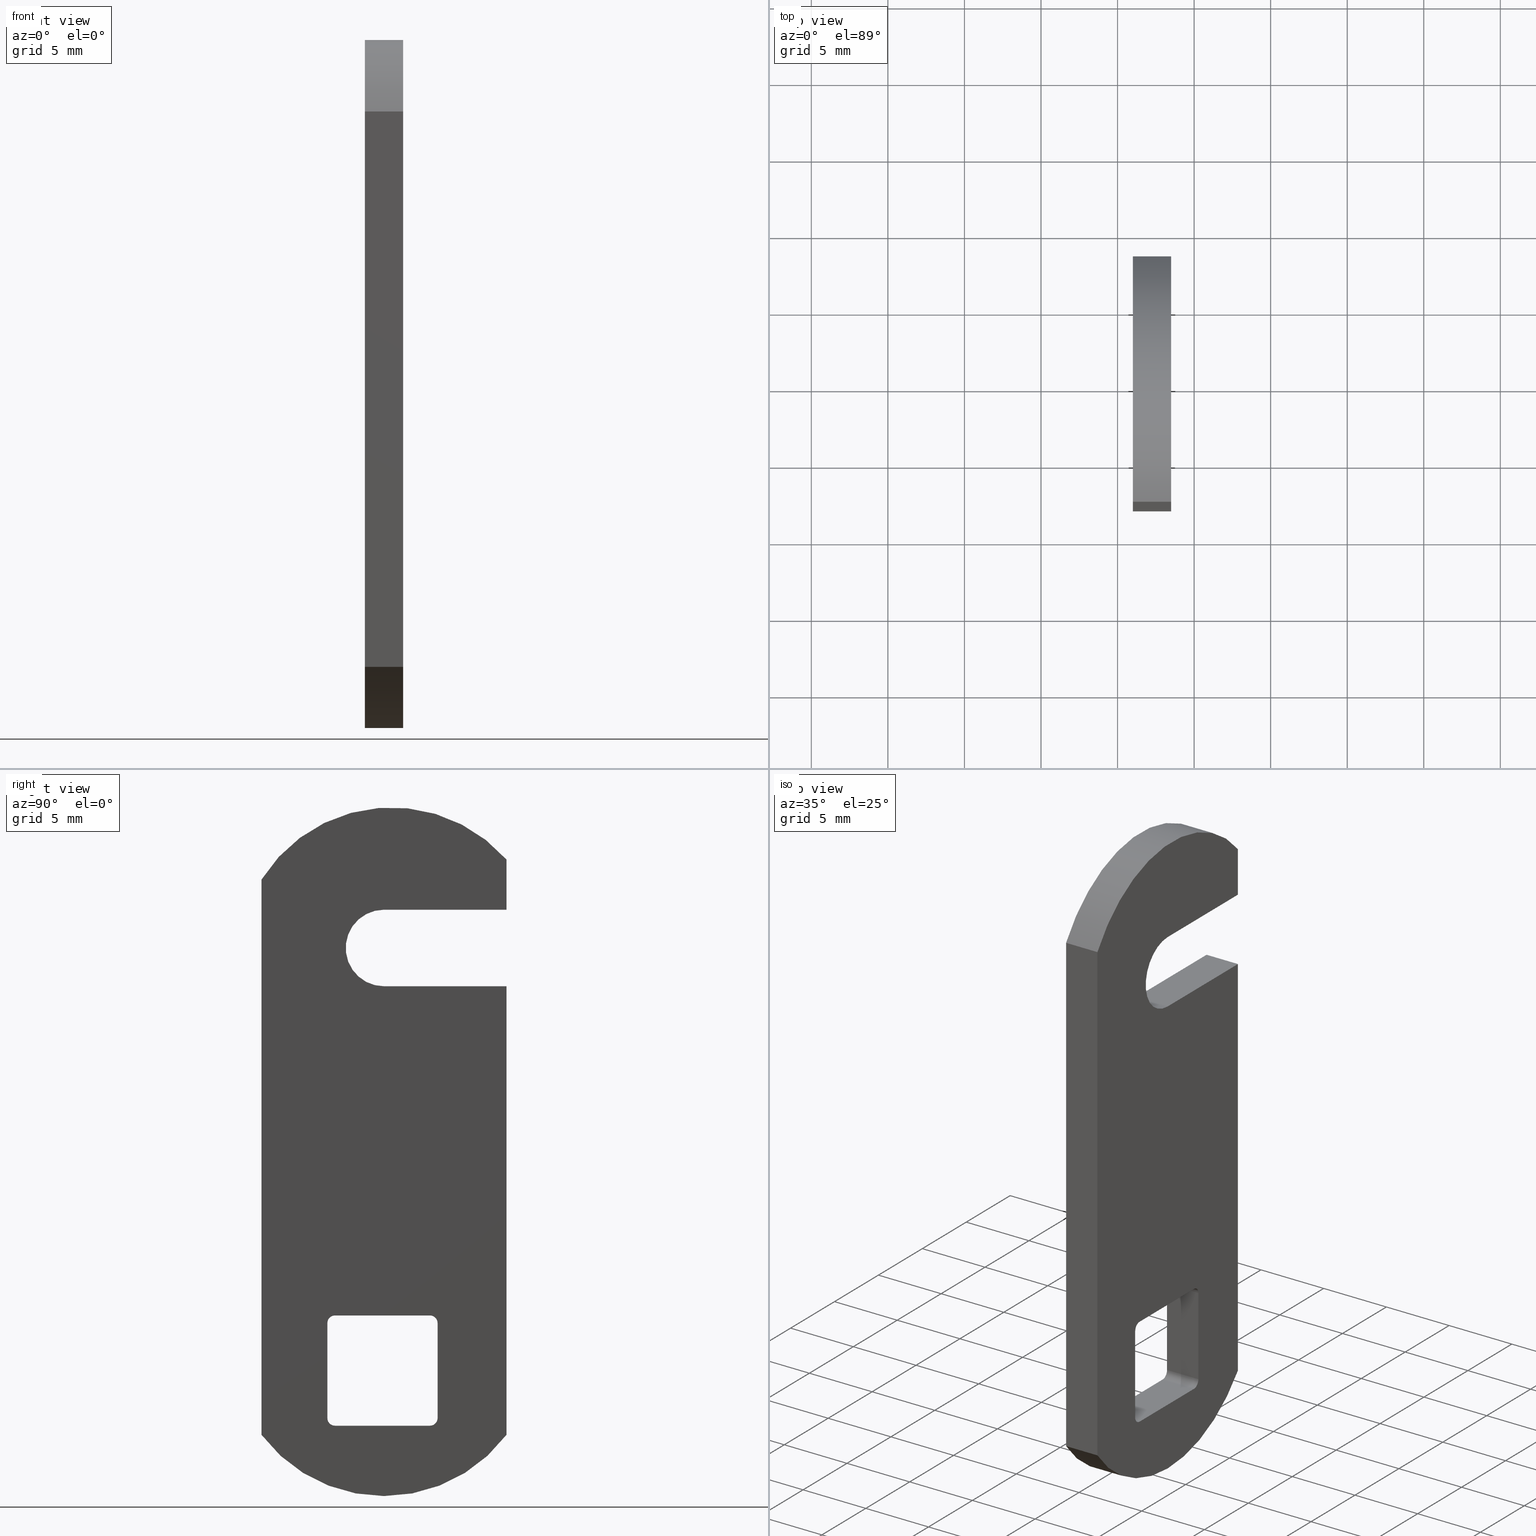
[diagram: canonical four-view strip — front | top / right | iso, engineering-drawing reading convention]
A machine part, canonical four-view strip (front | top / right | iso — engineering-drawing reading convention). The complete STEP part file that produces these views, byte-faithful:
ISO-10303-21;
HEADER;
/* Generated by software containing ST-Developer
 * from STEP Tools, Inc. (www.steptools.com) 
 */

FILE_DESCRIPTION(
/* description */ ('PIASTRINO ASOLATO X SERRAT.16X40X2,5'),
/* implementation_level */ '2;1');

FILE_NAME(
/* name */ 
'Q:\\Catalogo\\2_Accessori Dierre\\Per Download Web e catalogo cartace
o\\CATALOGO ACCESSORI PER RIPARI\\PAGINA 67\\DPSXX0000861.stp',
/* time_stamp */ '2018-11-08T16:53:43+01:00',
/* author */ ('fzagni'),
/* organization */ (''),
/* preprocessor_version */ 'ST-DEVELOPER v16.1',
/* originating_system */ 'Autodesk Inventor 2016',
/* authorisation */ '');

FILE_SCHEMA (('AUTOMOTIVE_DESIGN { 1 0 10303 214 3 1 1 }'));
ENDSEC;

DATA;
#10=MECHANICAL_DESIGN_GEOMETRIC_PRESENTATION_REPRESENTATION('',(#13),#585);
#11=SHAPE_REPRESENTATION_RELATIONSHIP('SRR','None',#594,#12);
#12=ADVANCED_BREP_SHAPE_REPRESENTATION('',(#14),#584);
#13=STYLED_ITEM('',(#603),#14);
#14=MANIFOLD_SOLID_BREP('None',#349);
#15=FACE_BOUND('',#62,.T.);
#16=FACE_BOUND('',#75,.T.);
#17=CIRCLE('',#354,2.5);
#18=CIRCLE('',#355,2.5);
#19=CIRCLE('',#359,10.);
#20=CIRCLE('',#360,10.);
#21=CIRCLE('',#361,0.5);
#22=CIRCLE('',#362,0.5);
#23=CIRCLE('',#363,0.5);
#24=CIRCLE('',#364,0.5);
#25=CIRCLE('',#367,10.);
#26=CIRCLE('',#369,10.);
#27=CIRCLE('',#372,0.5);
#28=CIRCLE('',#375,0.5);
#29=CIRCLE('',#378,0.5);
#30=CIRCLE('',#381,0.5);
#31=CYLINDRICAL_SURFACE('',#353,2.5);
#32=CYLINDRICAL_SURFACE('',#366,10.);
#33=CYLINDRICAL_SURFACE('',#368,10.);
#34=CYLINDRICAL_SURFACE('',#371,0.5);
#35=CYLINDRICAL_SURFACE('',#374,0.5);
#36=CYLINDRICAL_SURFACE('',#377,0.5);
#37=CYLINDRICAL_SURFACE('',#380,0.5);
#38=FACE_OUTER_BOUND('',#56,.T.);
#39=FACE_OUTER_BOUND('',#57,.T.);
#40=FACE_OUTER_BOUND('',#58,.T.);
#41=FACE_OUTER_BOUND('',#59,.T.);
#42=FACE_OUTER_BOUND('',#60,.T.);
#43=FACE_OUTER_BOUND('',#61,.T.);
#44=FACE_OUTER_BOUND('',#63,.T.);
#45=FACE_OUTER_BOUND('',#64,.T.);
#46=FACE_OUTER_BOUND('',#65,.T.);
#47=FACE_OUTER_BOUND('',#66,.T.);
#48=FACE_OUTER_BOUND('',#67,.T.);
#49=FACE_OUTER_BOUND('',#68,.T.);
#50=FACE_OUTER_BOUND('',#69,.T.);
#51=FACE_OUTER_BOUND('',#70,.T.);
#52=FACE_OUTER_BOUND('',#71,.T.);
#53=FACE_OUTER_BOUND('',#72,.T.);
#54=FACE_OUTER_BOUND('',#73,.T.);
#55=FACE_OUTER_BOUND('',#74,.T.);
#56=EDGE_LOOP('',(#224,#225,#226,#227));
#57=EDGE_LOOP('',(#228,#229,#230,#231));
#58=EDGE_LOOP('',(#232,#233,#234,#235));
#59=EDGE_LOOP('',(#236,#237,#238,#239));
#60=EDGE_LOOP('',(#240,#241,#242,#243));
#61=EDGE_LOOP('',(#244,#245,#246,#247,#248,#249,#250,#251));
#62=EDGE_LOOP('',(#252,#253,#254,#255,#256,#257,#258,#259));
#63=EDGE_LOOP('',(#260,#261,#262,#263));
#64=EDGE_LOOP('',(#264,#265,#266,#267));
#65=EDGE_LOOP('',(#268,#269,#270,#271));
#66=EDGE_LOOP('',(#272,#273,#274,#275));
#67=EDGE_LOOP('',(#276,#277,#278,#279));
#68=EDGE_LOOP('',(#280,#281,#282,#283));
#69=EDGE_LOOP('',(#284,#285,#286,#287));
#70=EDGE_LOOP('',(#288,#289,#290,#291));
#71=EDGE_LOOP('',(#292,#293,#294,#295));
#72=EDGE_LOOP('',(#296,#297,#298,#299));
#73=EDGE_LOOP('',(#300,#301,#302,#303));
#74=EDGE_LOOP('',(#304,#305,#306,#307,#308,#309,#310,#311));
#75=EDGE_LOOP('',(#312,#313,#314,#315,#316,#317,#318,#319));
#76=LINE('',#487,#110);
#77=LINE('',#489,#111);
#78=LINE('',#491,#112);
#79=LINE('',#492,#113);
#80=LINE('',#496,#114);
#81=LINE('',#498,#115);
#82=LINE('',#500,#116);
#83=LINE('',#501,#117);
#84=LINE('',#507,#118);
#85=LINE('',#509,#119);
#86=LINE('',#510,#120);
#87=LINE('',#513,#121);
#88=LINE('',#515,#122);
#89=LINE('',#516,#123);
#90=LINE('',#521,#124);
#91=LINE('',#525,#125);
#92=LINE('',#529,#126);
#93=LINE('',#533,#127);
#94=LINE('',#537,#128);
#95=LINE('',#542,#129);
#96=LINE('',#543,#130);
#97=LINE('',#544,#131);
#98=LINE('',#552,#132);
#99=LINE('',#553,#133);
#100=LINE('',#554,#134);
#101=LINE('',#558,#135);
#102=LINE('',#561,#136);
#103=LINE('',#562,#137);
#104=LINE('',#566,#138);
#105=LINE('',#569,#139);
#106=LINE('',#570,#140);
#107=LINE('',#574,#141);
#108=LINE('',#577,#142);
#109=LINE('',#578,#143);
#110=VECTOR('',#387,8.);
#111=VECTOR('',#388,2.5);
#112=VECTOR('',#389,8.);
#113=VECTOR('',#390,2.5);
#114=VECTOR('',#393,8.);
#115=VECTOR('',#394,2.5);
#116=VECTOR('',#395,8.);
#117=VECTOR('',#396,2.5);
#118=VECTOR('',#405,29.2958172199094);
#119=VECTOR('',#406,2.5);
#120=VECTOR('',#407,29.2958172199094);
#121=VECTOR('',#410,3.27849939249741);
#122=VECTOR('',#411,2.5);
#123=VECTOR('',#412,3.27849939249741);
#124=VECTOR('',#417,36.2674548355886);
#125=VECTOR('',#420,6.19999999999999);
#126=VECTOR('',#423,6.2);
#127=VECTOR('',#426,6.19999999999999);
#128=VECTOR('',#429,6.2);
#129=VECTOR('',#434,36.2674548355886);
#130=VECTOR('',#435,2.5);
#131=VECTOR('',#436,2.5);
#132=VECTOR('',#447,6.19999999999999);
#133=VECTOR('',#448,2.5);
#134=VECTOR('',#449,2.5);
#135=VECTOR('',#454,2.5);
#136=VECTOR('',#457,6.2);
#137=VECTOR('',#458,2.5);
#138=VECTOR('',#463,2.5);
#139=VECTOR('',#466,6.19999999999999);
#140=VECTOR('',#467,2.5);
#141=VECTOR('',#472,2.5);
#142=VECTOR('',#475,6.2);
#143=VECTOR('',#476,2.5);
#144=VERTEX_POINT('',#485);
#145=VERTEX_POINT('',#486);
#146=VERTEX_POINT('',#488);
#147=VERTEX_POINT('',#490);
#148=VERTEX_POINT('',#494);
#149=VERTEX_POINT('',#495);
#150=VERTEX_POINT('',#497);
#151=VERTEX_POINT('',#499);
#152=VERTEX_POINT('',#506);
#153=VERTEX_POINT('',#508);
#154=VERTEX_POINT('',#512);
#155=VERTEX_POINT('',#514);
#156=VERTEX_POINT('',#518);
#157=VERTEX_POINT('',#520);
#158=VERTEX_POINT('',#523);
#159=VERTEX_POINT('',#524);
#160=VERTEX_POINT('',#526);
#161=VERTEX_POINT('',#528);
#162=VERTEX_POINT('',#530);
#163=VERTEX_POINT('',#532);
#164=VERTEX_POINT('',#534);
#165=VERTEX_POINT('',#536);
#166=VERTEX_POINT('',#540);
#167=VERTEX_POINT('',#541);
#168=VERTEX_POINT('',#550);
#169=VERTEX_POINT('',#551);
#170=VERTEX_POINT('',#556);
#171=VERTEX_POINT('',#560);
#172=VERTEX_POINT('',#564);
#173=VERTEX_POINT('',#568);
#174=VERTEX_POINT('',#572);
#175=VERTEX_POINT('',#576);
#176=EDGE_CURVE('',#144,#145,#76,.T.);
#177=EDGE_CURVE('',#146,#144,#77,.T.);
#178=EDGE_CURVE('',#147,#146,#78,.T.);
#179=EDGE_CURVE('',#145,#147,#79,.T.);
#180=EDGE_CURVE('',#148,#149,#80,.T.);
#181=EDGE_CURVE('',#150,#148,#81,.T.);
#182=EDGE_CURVE('',#151,#150,#82,.T.);
#183=EDGE_CURVE('',#151,#149,#83,.T.);
#184=EDGE_CURVE('',#149,#144,#17,.T.);
#185=EDGE_CURVE('',#146,#151,#18,.T.);
#186=EDGE_CURVE('',#147,#152,#84,.T.);
#187=EDGE_CURVE('',#152,#153,#85,.T.);
#188=EDGE_CURVE('',#145,#153,#86,.T.);
#189=EDGE_CURVE('',#154,#148,#87,.T.);
#190=EDGE_CURVE('',#155,#154,#88,.T.);
#191=EDGE_CURVE('',#155,#150,#89,.T.);
#192=EDGE_CURVE('',#153,#156,#19,.T.);
#193=EDGE_CURVE('',#156,#157,#90,.T.);
#194=EDGE_CURVE('',#157,#154,#20,.T.);
#195=EDGE_CURVE('',#158,#159,#91,.T.);
#196=EDGE_CURVE('',#159,#160,#21,.T.);
#197=EDGE_CURVE('',#160,#161,#92,.T.);
#198=EDGE_CURVE('',#161,#162,#22,.T.);
#199=EDGE_CURVE('',#162,#163,#93,.T.);
#200=EDGE_CURVE('',#163,#164,#23,.T.);
#201=EDGE_CURVE('',#164,#165,#94,.T.);
#202=EDGE_CURVE('',#165,#158,#24,.T.);
#203=EDGE_CURVE('',#166,#167,#95,.T.);
#204=EDGE_CURVE('',#167,#157,#96,.F.);
#205=EDGE_CURVE('',#166,#156,#97,.T.);
#206=EDGE_CURVE('',#167,#155,#25,.T.);
#207=EDGE_CURVE('',#152,#166,#26,.T.);
#208=EDGE_CURVE('',#168,#169,#98,.T.);
#209=EDGE_CURVE('',#169,#159,#99,.T.);
#210=EDGE_CURVE('',#168,#158,#100,.T.);
#211=EDGE_CURVE('',#169,#170,#27,.T.);
#212=EDGE_CURVE('',#170,#160,#101,.T.);
#213=EDGE_CURVE('',#170,#171,#102,.T.);
#214=EDGE_CURVE('',#171,#161,#103,.T.);
#215=EDGE_CURVE('',#171,#172,#28,.T.);
#216=EDGE_CURVE('',#172,#162,#104,.T.);
#217=EDGE_CURVE('',#172,#173,#105,.T.);
#218=EDGE_CURVE('',#173,#163,#106,.T.);
#219=EDGE_CURVE('',#173,#174,#29,.T.);
#220=EDGE_CURVE('',#174,#164,#107,.T.);
#221=EDGE_CURVE('',#174,#175,#108,.T.);
#222=EDGE_CURVE('',#175,#165,#109,.T.);
#223=EDGE_CURVE('',#175,#168,#30,.T.);
#224=ORIENTED_EDGE('',*,*,#176,.F.);
#225=ORIENTED_EDGE('',*,*,#177,.F.);
#226=ORIENTED_EDGE('',*,*,#178,.F.);
#227=ORIENTED_EDGE('',*,*,#179,.F.);
#228=ORIENTED_EDGE('',*,*,#180,.F.);
#229=ORIENTED_EDGE('',*,*,#181,.F.);
#230=ORIENTED_EDGE('',*,*,#182,.F.);
#231=ORIENTED_EDGE('',*,*,#183,.T.);
#232=ORIENTED_EDGE('',*,*,#184,.F.);
#233=ORIENTED_EDGE('',*,*,#183,.F.);
#234=ORIENTED_EDGE('',*,*,#185,.F.);
#235=ORIENTED_EDGE('',*,*,#177,.T.);
#236=ORIENTED_EDGE('',*,*,#179,.T.);
#237=ORIENTED_EDGE('',*,*,#186,.T.);
#238=ORIENTED_EDGE('',*,*,#187,.T.);
#239=ORIENTED_EDGE('',*,*,#188,.F.);
#240=ORIENTED_EDGE('',*,*,#181,.T.);
#241=ORIENTED_EDGE('',*,*,#189,.F.);
#242=ORIENTED_EDGE('',*,*,#190,.F.);
#243=ORIENTED_EDGE('',*,*,#191,.T.);
#244=ORIENTED_EDGE('',*,*,#180,.T.);
#245=ORIENTED_EDGE('',*,*,#184,.T.);
#246=ORIENTED_EDGE('',*,*,#176,.T.);
#247=ORIENTED_EDGE('',*,*,#188,.T.);
#248=ORIENTED_EDGE('',*,*,#192,.T.);
#249=ORIENTED_EDGE('',*,*,#193,.T.);
#250=ORIENTED_EDGE('',*,*,#194,.T.);
#251=ORIENTED_EDGE('',*,*,#189,.T.);
#252=ORIENTED_EDGE('',*,*,#195,.T.);
#253=ORIENTED_EDGE('',*,*,#196,.T.);
#254=ORIENTED_EDGE('',*,*,#197,.T.);
#255=ORIENTED_EDGE('',*,*,#198,.T.);
#256=ORIENTED_EDGE('',*,*,#199,.T.);
#257=ORIENTED_EDGE('',*,*,#200,.T.);
#258=ORIENTED_EDGE('',*,*,#201,.T.);
#259=ORIENTED_EDGE('',*,*,#202,.T.);
#260=ORIENTED_EDGE('',*,*,#203,.T.);
#261=ORIENTED_EDGE('',*,*,#204,.T.);
#262=ORIENTED_EDGE('',*,*,#193,.F.);
#263=ORIENTED_EDGE('',*,*,#205,.F.);
#264=ORIENTED_EDGE('',*,*,#206,.T.);
#265=ORIENTED_EDGE('',*,*,#190,.T.);
#266=ORIENTED_EDGE('',*,*,#194,.F.);
#267=ORIENTED_EDGE('',*,*,#204,.F.);
#268=ORIENTED_EDGE('',*,*,#207,.T.);
#269=ORIENTED_EDGE('',*,*,#205,.T.);
#270=ORIENTED_EDGE('',*,*,#192,.F.);
#271=ORIENTED_EDGE('',*,*,#187,.F.);
#272=ORIENTED_EDGE('',*,*,#208,.T.);
#273=ORIENTED_EDGE('',*,*,#209,.T.);
#274=ORIENTED_EDGE('',*,*,#195,.F.);
#275=ORIENTED_EDGE('',*,*,#210,.F.);
#276=ORIENTED_EDGE('',*,*,#211,.T.);
#277=ORIENTED_EDGE('',*,*,#212,.T.);
#278=ORIENTED_EDGE('',*,*,#196,.F.);
#279=ORIENTED_EDGE('',*,*,#209,.F.);
#280=ORIENTED_EDGE('',*,*,#213,.T.);
#281=ORIENTED_EDGE('',*,*,#214,.T.);
#282=ORIENTED_EDGE('',*,*,#197,.F.);
#283=ORIENTED_EDGE('',*,*,#212,.F.);
#284=ORIENTED_EDGE('',*,*,#215,.T.);
#285=ORIENTED_EDGE('',*,*,#216,.T.);
#286=ORIENTED_EDGE('',*,*,#198,.F.);
#287=ORIENTED_EDGE('',*,*,#214,.F.);
#288=ORIENTED_EDGE('',*,*,#217,.T.);
#289=ORIENTED_EDGE('',*,*,#218,.T.);
#290=ORIENTED_EDGE('',*,*,#199,.F.);
#291=ORIENTED_EDGE('',*,*,#216,.F.);
#292=ORIENTED_EDGE('',*,*,#219,.T.);
#293=ORIENTED_EDGE('',*,*,#220,.T.);
#294=ORIENTED_EDGE('',*,*,#200,.F.);
#295=ORIENTED_EDGE('',*,*,#218,.F.);
#296=ORIENTED_EDGE('',*,*,#221,.T.);
#297=ORIENTED_EDGE('',*,*,#222,.T.);
#298=ORIENTED_EDGE('',*,*,#201,.F.);
#299=ORIENTED_EDGE('',*,*,#220,.F.);
#300=ORIENTED_EDGE('',*,*,#223,.T.);
#301=ORIENTED_EDGE('',*,*,#210,.T.);
#302=ORIENTED_EDGE('',*,*,#202,.F.);
#303=ORIENTED_EDGE('',*,*,#222,.F.);
#304=ORIENTED_EDGE('',*,*,#182,.T.);
#305=ORIENTED_EDGE('',*,*,#191,.F.);
#306=ORIENTED_EDGE('',*,*,#206,.F.);
#307=ORIENTED_EDGE('',*,*,#203,.F.);
#308=ORIENTED_EDGE('',*,*,#207,.F.);
#309=ORIENTED_EDGE('',*,*,#186,.F.);
#310=ORIENTED_EDGE('',*,*,#178,.T.);
#311=ORIENTED_EDGE('',*,*,#185,.T.);
#312=ORIENTED_EDGE('',*,*,#223,.F.);
#313=ORIENTED_EDGE('',*,*,#221,.F.);
#314=ORIENTED_EDGE('',*,*,#219,.F.);
#315=ORIENTED_EDGE('',*,*,#217,.F.);
#316=ORIENTED_EDGE('',*,*,#215,.F.);
#317=ORIENTED_EDGE('',*,*,#213,.F.);
#318=ORIENTED_EDGE('',*,*,#211,.F.);
#319=ORIENTED_EDGE('',*,*,#208,.F.);
#320=PLANE('',#351);
#321=PLANE('',#352);
#322=PLANE('',#356);
#323=PLANE('',#357);
#324=PLANE('',#358);
#325=PLANE('',#365);
#326=PLANE('',#370);
#327=PLANE('',#373);
#328=PLANE('',#376);
#329=PLANE('',#379);
#330=PLANE('',#382);
#331=ADVANCED_FACE('',(#38),#320,.F.);
#332=ADVANCED_FACE('',(#39),#321,.F.);
#333=ADVANCED_FACE('',(#40),#31,.F.);
#334=ADVANCED_FACE('',(#41),#322,.T.);
#335=ADVANCED_FACE('',(#42),#323,.T.);
#336=ADVANCED_FACE('',(#43,#15),#324,.T.);
#337=ADVANCED_FACE('',(#44),#325,.T.);
#338=ADVANCED_FACE('',(#45),#32,.T.);
#339=ADVANCED_FACE('',(#46),#33,.T.);
#340=ADVANCED_FACE('',(#47),#326,.T.);
#341=ADVANCED_FACE('',(#48),#34,.F.);
#342=ADVANCED_FACE('',(#49),#327,.T.);
#343=ADVANCED_FACE('',(#50),#35,.F.);
#344=ADVANCED_FACE('',(#51),#328,.T.);
#345=ADVANCED_FACE('',(#52),#36,.F.);
#346=ADVANCED_FACE('',(#53),#329,.T.);
#347=ADVANCED_FACE('',(#54),#37,.F.);
#348=ADVANCED_FACE('',(#55,#16),#330,.F.);
#349=CLOSED_SHELL('',(#331,#332,#333,#334,#335,#336,#337,#338,#339,#340,
#341,#342,#343,#344,#345,#346,#347,#348));
#350=AXIS2_PLACEMENT_3D('placement',#483,#383,#384);
#351=AXIS2_PLACEMENT_3D('',#484,#385,#386);
#352=AXIS2_PLACEMENT_3D('',#493,#391,#392);
#353=AXIS2_PLACEMENT_3D('',#502,#397,#398);
#354=AXIS2_PLACEMENT_3D('',#503,#399,#400);
#355=AXIS2_PLACEMENT_3D('',#504,#401,#402);
#356=AXIS2_PLACEMENT_3D('',#505,#403,#404);
#357=AXIS2_PLACEMENT_3D('',#511,#408,#409);
#358=AXIS2_PLACEMENT_3D('',#517,#413,#414);
#359=AXIS2_PLACEMENT_3D('',#519,#415,#416);
#360=AXIS2_PLACEMENT_3D('',#522,#418,#419);
#361=AXIS2_PLACEMENT_3D('',#527,#421,#422);
#362=AXIS2_PLACEMENT_3D('',#531,#424,#425);
#363=AXIS2_PLACEMENT_3D('',#535,#427,#428);
#364=AXIS2_PLACEMENT_3D('',#538,#430,#431);
#365=AXIS2_PLACEMENT_3D('',#539,#432,#433);
#366=AXIS2_PLACEMENT_3D('',#545,#437,#438);
#367=AXIS2_PLACEMENT_3D('',#546,#439,#440);
#368=AXIS2_PLACEMENT_3D('',#547,#441,#442);
#369=AXIS2_PLACEMENT_3D('',#548,#443,#444);
#370=AXIS2_PLACEMENT_3D('',#549,#445,#446);
#371=AXIS2_PLACEMENT_3D('',#555,#450,#451);
#372=AXIS2_PLACEMENT_3D('',#557,#452,#453);
#373=AXIS2_PLACEMENT_3D('',#559,#455,#456);
#374=AXIS2_PLACEMENT_3D('',#563,#459,#460);
#375=AXIS2_PLACEMENT_3D('',#565,#461,#462);
#376=AXIS2_PLACEMENT_3D('',#567,#464,#465);
#377=AXIS2_PLACEMENT_3D('',#571,#468,#469);
#378=AXIS2_PLACEMENT_3D('',#573,#470,#471);
#379=AXIS2_PLACEMENT_3D('',#575,#473,#474);
#380=AXIS2_PLACEMENT_3D('',#579,#477,#478);
#381=AXIS2_PLACEMENT_3D('',#580,#479,#480);
#382=AXIS2_PLACEMENT_3D('',#581,#481,#482);
#383=DIRECTION('axis',(0.,0.,1.));
#384=DIRECTION('refdir',(1.,0.,0.));
#385=DIRECTION('center_axis',(0.,8.32667268468864E-16,-1.));
#386=DIRECTION('ref_axis',(0.,-1.,-7.105427357601E-16));
#387=DIRECTION('',(0.,1.,8.32667268468864E-16));
#388=DIRECTION('',(-1.,0.,0.));
#389=DIRECTION('',(0.,-1.,-8.32667268468864E-16));
#390=DIRECTION('',(1.,0.,0.));
#391=DIRECTION('center_axis',(0.,-8.32667268468864E-16,1.));
#392=DIRECTION('ref_axis',(0.,1.,7.105427357601E-16));
#393=DIRECTION('',(0.,-1.,-8.32667268468864E-16));
#394=DIRECTION('',(-1.,0.,0.));
#395=DIRECTION('',(0.,1.,8.32667268468864E-16));
#396=DIRECTION('',(-1.,0.,0.));
#397=DIRECTION('center_axis',(-1.,0.,0.));
#398=DIRECTION('ref_axis',(0.,-1.0547118733939E-15,1.));
#399=DIRECTION('center_axis',(1.,0.,0.));
#400=DIRECTION('ref_axis',(0.,-1.0547118733939E-15,1.));
#401=DIRECTION('center_axis',(-1.,0.,0.));
#402=DIRECTION('ref_axis',(0.,-1.0547118733939E-15,1.));
#403=DIRECTION('center_axis',(0.,1.,0.));
#404=DIRECTION('ref_axis',(0.,0.,1.));
#405=DIRECTION('',(0.,0.,-1.));
#406=DIRECTION('',(-1.,0.,0.));
#407=DIRECTION('',(0.,0.,-1.));
#408=DIRECTION('center_axis',(0.,1.,0.));
#409=DIRECTION('ref_axis',(0.,0.,1.));
#410=DIRECTION('',(0.,0.,-1.));
#411=DIRECTION('',(-1.,0.,0.));
#412=DIRECTION('',(0.,0.,-1.));
#413=DIRECTION('center_axis',(-1.,0.,0.));
#414=DIRECTION('ref_axis',(0.,0.,1.));
#415=DIRECTION('center_axis',(-1.,0.,0.));
#416=DIRECTION('ref_axis',(0.,0.,1.));
#417=DIRECTION('',(0.,0.,1.));
#418=DIRECTION('center_axis',(-1.,0.,0.));
#419=DIRECTION('ref_axis',(0.,0.,1.));
#420=DIRECTION('',(0.,1.,0.));
#421=DIRECTION('center_axis',(1.,0.,0.));
#422=DIRECTION('ref_axis',(0.,0.,1.));
#423=DIRECTION('',(0.,0.,1.));
#424=DIRECTION('center_axis',(1.,0.,0.));
#425=DIRECTION('ref_axis',(0.,0.,1.));
#426=DIRECTION('',(0.,-1.,0.));
#427=DIRECTION('center_axis',(1.,0.,0.));
#428=DIRECTION('ref_axis',(0.,0.,1.));
#429=DIRECTION('',(0.,0.,-1.));
#430=DIRECTION('center_axis',(1.,0.,0.));
#431=DIRECTION('ref_axis',(0.,0.,1.));
#432=DIRECTION('center_axis',(0.,-1.,0.));
#433=DIRECTION('ref_axis',(0.,0.,-1.));
#434=DIRECTION('',(0.,0.,1.));
#435=DIRECTION('',(1.,0.,0.));
#436=DIRECTION('',(-1.,0.,0.));
#437=DIRECTION('center_axis',(-1.,0.,0.));
#438=DIRECTION('ref_axis',(0.,-0.800000000000001,0.599999999999999));
#439=DIRECTION('center_axis',(-1.,0.,0.));
#440=DIRECTION('ref_axis',(0.,0.,1.));
#441=DIRECTION('center_axis',(-1.,0.,0.));
#442=DIRECTION('ref_axis',(0.,0.,1.));
#443=DIRECTION('center_axis',(-1.,0.,0.));
#444=DIRECTION('ref_axis',(0.,0.,1.));
#445=DIRECTION('center_axis',(0.,0.,1.));
#446=DIRECTION('ref_axis',(1.,0.,0.));
#447=DIRECTION('',(0.,1.,0.));
#448=DIRECTION('',(-1.,0.,0.));
#449=DIRECTION('',(-1.,0.,0.));
#450=DIRECTION('center_axis',(1.,0.,0.));
#451=DIRECTION('ref_axis',(0.,0.,-1.));
#452=DIRECTION('center_axis',(1.,0.,0.));
#453=DIRECTION('ref_axis',(0.,0.,1.));
#454=DIRECTION('',(-1.,0.,0.));
#455=DIRECTION('center_axis',(0.,-1.,0.));
#456=DIRECTION('ref_axis',(0.,0.,-1.));
#457=DIRECTION('',(0.,0.,1.));
#458=DIRECTION('',(-1.,0.,0.));
#459=DIRECTION('center_axis',(1.,0.,0.));
#460=DIRECTION('ref_axis',(0.,1.,0.));
#461=DIRECTION('center_axis',(1.,0.,0.));
#462=DIRECTION('ref_axis',(0.,0.,1.));
#463=DIRECTION('',(-1.,0.,0.));
#464=DIRECTION('center_axis',(0.,0.,-1.));
#465=DIRECTION('ref_axis',(-1.,0.,0.));
#466=DIRECTION('',(0.,-1.,0.));
#467=DIRECTION('',(-1.,0.,0.));
#468=DIRECTION('center_axis',(1.,0.,0.));
#469=DIRECTION('ref_axis',(0.,0.,1.));
#470=DIRECTION('center_axis',(1.,0.,0.));
#471=DIRECTION('ref_axis',(0.,0.,1.));
#472=DIRECTION('',(-1.,0.,0.));
#473=DIRECTION('center_axis',(0.,1.,0.));
#474=DIRECTION('ref_axis',(0.,0.,1.));
#475=DIRECTION('',(0.,0.,-1.));
#476=DIRECTION('',(-1.,0.,0.));
#477=DIRECTION('center_axis',(1.,0.,0.));
#478=DIRECTION('ref_axis',(0.,-1.,0.));
#479=DIRECTION('center_axis',(1.,0.,0.));
#480=DIRECTION('ref_axis',(0.,0.,1.));
#481=DIRECTION('center_axis',(-1.,0.,0.));
#482=DIRECTION('ref_axis',(0.,0.,1.));
#483=CARTESIAN_POINT('',(0.,0.,0.));
#484=CARTESIAN_POINT('Origin',(-31.5000000687006,8.09958979626274,25.1));
#485=CARTESIAN_POINT('',(-34.0000000687006,0.0995897962627374,25.1));
#486=CARTESIAN_POINT('',(-34.0000000687006,8.09958979626274,25.1));
#487=CARTESIAN_POINT('',(-34.0000000687006,-0.700470203881877,25.1));
#488=CARTESIAN_POINT('',(-31.5000000687006,0.0995897962627374,25.1));
#489=CARTESIAN_POINT('',(-31.5000000687006,0.0995897962627374,25.1));
#490=CARTESIAN_POINT('',(-31.5000000687006,8.09958979626274,25.1));
#491=CARTESIAN_POINT('',(-31.5000000687006,-0.700470203881877,25.1));
#492=CARTESIAN_POINT('',(-31.5000000687006,8.09958979626273,25.1));
#493=CARTESIAN_POINT('Origin',(-31.5000000687006,0.0995897962627335,30.1));
#494=CARTESIAN_POINT('',(-34.0000000687006,8.09958979626273,30.1));
#495=CARTESIAN_POINT('',(-34.0000000687006,0.0995897962627332,30.1));
#496=CARTESIAN_POINT('',(-34.0000000687006,-4.70047020388188,30.1));
#497=CARTESIAN_POINT('',(-31.5000000687006,8.09958979626273,30.1));
#498=CARTESIAN_POINT('',(-31.5000000687006,8.09958979626273,30.1));
#499=CARTESIAN_POINT('',(-31.5000000687006,0.0995897962627332,30.1));
#500=CARTESIAN_POINT('',(-31.5000000687006,-4.70047020388188,30.1));
#501=CARTESIAN_POINT('',(-31.5000000687006,0.0995897962627332,30.1));
#502=CARTESIAN_POINT('Origin',(-31.5000000687006,0.0995897962627358,27.6));
#503=CARTESIAN_POINT('Origin',(-34.0000000687006,0.0995897962627358,27.6));
#504=CARTESIAN_POINT('Origin',(-31.5000000687006,0.0995897962627358,27.6));
#505=CARTESIAN_POINT('Origin',(-31.5000000687006,8.09958979626273,27.8041827800906));
#506=CARTESIAN_POINT('',(-31.5000000687006,8.09958979626276,-4.19581721990934));
#507=CARTESIAN_POINT('',(-31.5000000687006,8.09958979626273,27.8041827800906));
#508=CARTESIAN_POINT('',(-34.0000000687006,8.09958979626276,-4.19581721990934));
#509=CARTESIAN_POINT('',(-31.5000000687006,8.09958979626276,-4.19581721990934));
#510=CARTESIAN_POINT('',(-34.0000000687006,8.09958979626273,27.8041827800906));
#511=CARTESIAN_POINT('Origin',(-31.5000000687006,8.09958979626273,27.8041827800906));
#512=CARTESIAN_POINT('',(-34.0000000687006,8.09958979626273,33.3784993924974));
#513=CARTESIAN_POINT('',(-34.0000000687006,8.09958979626273,27.8041827800906));
#514=CARTESIAN_POINT('',(-31.5000000687006,8.09958979626273,33.3784993924974));
#515=CARTESIAN_POINT('',(-31.5000000687006,8.09958979626273,33.3784993924974));
#516=CARTESIAN_POINT('',(-31.5000000687006,8.09958979626273,27.8041827800906));
#517=CARTESIAN_POINT('Origin',(-34.0000000687006,-9.50053020402646,-12.1959372202357));
#518=CARTESIAN_POINT('',(-34.0000000687006,-7.9004102037373,-4.19581721990936));
#519=CARTESIAN_POINT('Origin',(-34.0000000687006,0.099589796262734,1.80418278009063));
#520=CARTESIAN_POINT('',(-34.0000000687006,-7.9004102037373,32.0716376156792));
#521=CARTESIAN_POINT('',(-34.0000000687006,-7.9004102037373,-4.19581721990936));
#522=CARTESIAN_POINT('Origin',(-34.0000000687006,0.585131142116536,26.7805518983802));
#523=CARTESIAN_POINT('',(-34.0000000687006,-3.10000000000002,-3.6));
#524=CARTESIAN_POINT('',(-34.0000000687006,3.09999999999997,-3.6));
#525=CARTESIAN_POINT('',(-34.0000000687006,-3.10000000000002,-3.6));
#526=CARTESIAN_POINT('',(-34.0000000687006,3.59999999999997,-3.10000000000001));
#527=CARTESIAN_POINT('Origin',(-34.0000000687006,3.09999999999997,-3.1));
#528=CARTESIAN_POINT('',(-34.0000000687006,3.59999999999997,3.09999999999999));
#529=CARTESIAN_POINT('',(-34.0000000687006,3.59999999999997,-3.10000000000001));
#530=CARTESIAN_POINT('',(-34.0000000687006,3.09999999999997,3.59999999999999));
#531=CARTESIAN_POINT('Origin',(-34.0000000687006,3.09999999999997,3.09999999999999));
#532=CARTESIAN_POINT('',(-34.0000000687006,-3.10000000000002,3.59999999999999));
#533=CARTESIAN_POINT('',(-34.0000000687006,3.09999999999997,3.59999999999999));
#534=CARTESIAN_POINT('',(-34.0000000687006,-3.60000000000002,3.10000000000001));
#535=CARTESIAN_POINT('Origin',(-34.0000000687006,-3.10000000000002,3.09999999999999));
#536=CARTESIAN_POINT('',(-34.0000000687006,-3.60000000000002,-3.1));
#537=CARTESIAN_POINT('',(-34.0000000687006,-3.60000000000002,3.10000000000001));
#538=CARTESIAN_POINT('Origin',(-34.0000000687006,-3.10000000000002,-3.1));
#539=CARTESIAN_POINT('Origin',(-31.5000000687006,-7.9004102037373,-4.19581721990936));
#540=CARTESIAN_POINT('',(-31.5000000687006,-7.9004102037373,-4.19581721990936));
#541=CARTESIAN_POINT('',(-31.5000000687006,-7.9004102037373,32.0716376156792));
#542=CARTESIAN_POINT('',(-31.5000000687006,-7.9004102037373,-4.19581721990936));
#543=CARTESIAN_POINT('',(-31.5000000687006,-7.9004102037373,32.0716376156792));
#544=CARTESIAN_POINT('',(-31.5000000687006,-7.9004102037373,-4.19581721990936));
#545=CARTESIAN_POINT('Origin',(-31.5000000687006,0.585131142116536,26.7805518983802));
#546=CARTESIAN_POINT('Origin',(-31.5000000687006,0.585131142116536,26.7805518983802));
#547=CARTESIAN_POINT('Origin',(-31.5000000687006,0.099589796262734,1.80418278009063));
#548=CARTESIAN_POINT('Origin',(-31.5000000687006,0.099589796262734,1.80418278009063));
#549=CARTESIAN_POINT('Origin',(-31.5000000687006,-3.10000000000002,-3.6));
#550=CARTESIAN_POINT('',(-31.5000000687006,-3.10000000000002,-3.6));
#551=CARTESIAN_POINT('',(-31.5000000687006,3.09999999999997,-3.6));
#552=CARTESIAN_POINT('',(-31.5000000687006,-3.10000000000002,-3.6));
#553=CARTESIAN_POINT('',(-31.5000000687006,3.09999999999997,-3.6));
#554=CARTESIAN_POINT('',(-31.5000000687006,-3.10000000000002,-3.6));
#555=CARTESIAN_POINT('Origin',(-31.5000000687006,3.09999999999997,-3.1));
#556=CARTESIAN_POINT('',(-31.5000000687006,3.59999999999997,-3.10000000000001));
#557=CARTESIAN_POINT('Origin',(-31.5000000687006,3.09999999999997,-3.1));
#558=CARTESIAN_POINT('',(-31.5000000687006,3.59999999999997,-3.10000000000001));
#559=CARTESIAN_POINT('Origin',(-31.5000000687006,3.59999999999997,-3.10000000000001));
#560=CARTESIAN_POINT('',(-31.5000000687006,3.59999999999997,3.09999999999999));
#561=CARTESIAN_POINT('',(-31.5000000687006,3.59999999999997,-3.10000000000001));
#562=CARTESIAN_POINT('',(-31.5000000687006,3.59999999999997,3.09999999999999));
#563=CARTESIAN_POINT('Origin',(-31.5000000687006,3.09999999999997,3.09999999999999));
#564=CARTESIAN_POINT('',(-31.5000000687006,3.09999999999997,3.59999999999999));
#565=CARTESIAN_POINT('Origin',(-31.5000000687006,3.09999999999997,3.09999999999999));
#566=CARTESIAN_POINT('',(-31.5000000687006,3.09999999999997,3.59999999999999));
#567=CARTESIAN_POINT('Origin',(-31.5000000687006,3.09999999999997,3.59999999999999));
#568=CARTESIAN_POINT('',(-31.5000000687006,-3.10000000000002,3.59999999999999));
#569=CARTESIAN_POINT('',(-31.5000000687006,3.09999999999997,3.59999999999999));
#570=CARTESIAN_POINT('',(-31.5000000687006,-3.10000000000002,3.59999999999999));
#571=CARTESIAN_POINT('Origin',(-31.5000000687006,-3.10000000000002,3.09999999999999));
#572=CARTESIAN_POINT('',(-31.5000000687006,-3.60000000000002,3.10000000000001));
#573=CARTESIAN_POINT('Origin',(-31.5000000687006,-3.10000000000002,3.09999999999999));
#574=CARTESIAN_POINT('',(-31.5000000687006,-3.60000000000002,3.10000000000001));
#575=CARTESIAN_POINT('Origin',(-31.5000000687006,-3.60000000000002,3.10000000000001));
#576=CARTESIAN_POINT('',(-31.5000000687006,-3.60000000000002,-3.1));
#577=CARTESIAN_POINT('',(-31.5000000687006,-3.60000000000002,3.10000000000001));
#578=CARTESIAN_POINT('',(-31.5000000687006,-3.60000000000002,-3.1));
#579=CARTESIAN_POINT('Origin',(-31.5000000687006,-3.10000000000002,-3.1));
#580=CARTESIAN_POINT('Origin',(-31.5000000687006,-3.10000000000002,-3.1));
#581=CARTESIAN_POINT('Origin',(-31.5000000687006,-9.50053020402646,-12.1959372202357));
#582=UNCERTAINTY_MEASURE_WITH_UNIT(LENGTH_MEASURE(0.01),#586,
'DISTANCE_ACCURACY_VALUE',
'Maximum model space distance between geometric entities at asserted c
onnectivities');
#583=UNCERTAINTY_MEASURE_WITH_UNIT(LENGTH_MEASURE(1.E-6),#586,
'DISTANCE_ACCURACY_VALUE',
'Maximum model space distance between geometric entities at asserted c
onnectivities');
#584=(
GEOMETRIC_REPRESENTATION_CONTEXT(3)
GLOBAL_UNCERTAINTY_ASSIGNED_CONTEXT((#582))
GLOBAL_UNIT_ASSIGNED_CONTEXT((#586,#589,#587))
REPRESENTATION_CONTEXT('','3D')
);
#585=(
GEOMETRIC_REPRESENTATION_CONTEXT(3)
GLOBAL_UNCERTAINTY_ASSIGNED_CONTEXT((#583))
GLOBAL_UNIT_ASSIGNED_CONTEXT((#586,#589,#587))
REPRESENTATION_CONTEXT('','3D')
);
#586=(
LENGTH_UNIT()
NAMED_UNIT(*)
SI_UNIT(.MILLI.,.METRE.)
);
#587=(
NAMED_UNIT(*)
SI_UNIT($,.STERADIAN.)
SOLID_ANGLE_UNIT()
);
#588=DIMENSIONAL_EXPONENTS(0.,0.,0.,0.,0.,0.,0.);
#589=(
CONVERSION_BASED_UNIT('degree',#591)
NAMED_UNIT(#588)
PLANE_ANGLE_UNIT()
);
#590=(
NAMED_UNIT(*)
PLANE_ANGLE_UNIT()
SI_UNIT($,.RADIAN.)
);
#591=PLANE_ANGLE_MEASURE_WITH_UNIT(PLANE_ANGLE_MEASURE(0.01745329252),#590);
#592=SHAPE_DEFINITION_REPRESENTATION(#593,#594);
#593=PRODUCT_DEFINITION_SHAPE('',$,#596);
#594=SHAPE_REPRESENTATION('',(#350),#584);
#595=PRODUCT_DEFINITION_CONTEXT('part definition',#600,'design');
#596=PRODUCT_DEFINITION('70PS00022-A','70PS00022-A',#597,#595);
#597=PRODUCT_DEFINITION_FORMATION('','A',#602);
#598=PRODUCT_RELATED_PRODUCT_CATEGORY('70PS00022-A','70PS00022-A',(#602));
#599=APPLICATION_PROTOCOL_DEFINITION('international standard',
'automotive_design',2009,#600);
#600=APPLICATION_CONTEXT(
'Core Data for Automotive Mechanical Design Process');
#601=PRODUCT_CONTEXT('part definition',#600,'mechanical');
#602=PRODUCT('70PS00022-A','70PS00022-A',$,(#601));
#603=PRESENTATION_STYLE_ASSIGNMENT((#604));
#604=SURFACE_STYLE_USAGE(.BOTH.,#605);
#605=SURFACE_SIDE_STYLE('',(#606));
#606=SURFACE_STYLE_FILL_AREA(#607);
#607=FILL_AREA_STYLE('',(#608));
#608=FILL_AREA_STYLE_COLOUR('',#609);
#609=COLOUR_RGB('',0.752941176470588,0.752941176470588,0.752941176470588);
ENDSEC;
END-ISO-10303-21;
